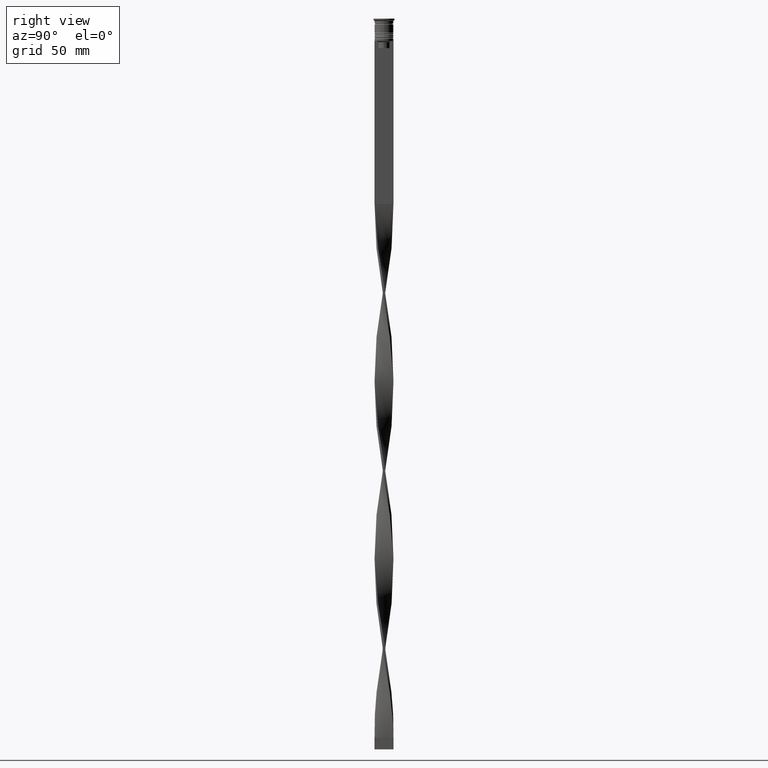
[diagram: clean part render]
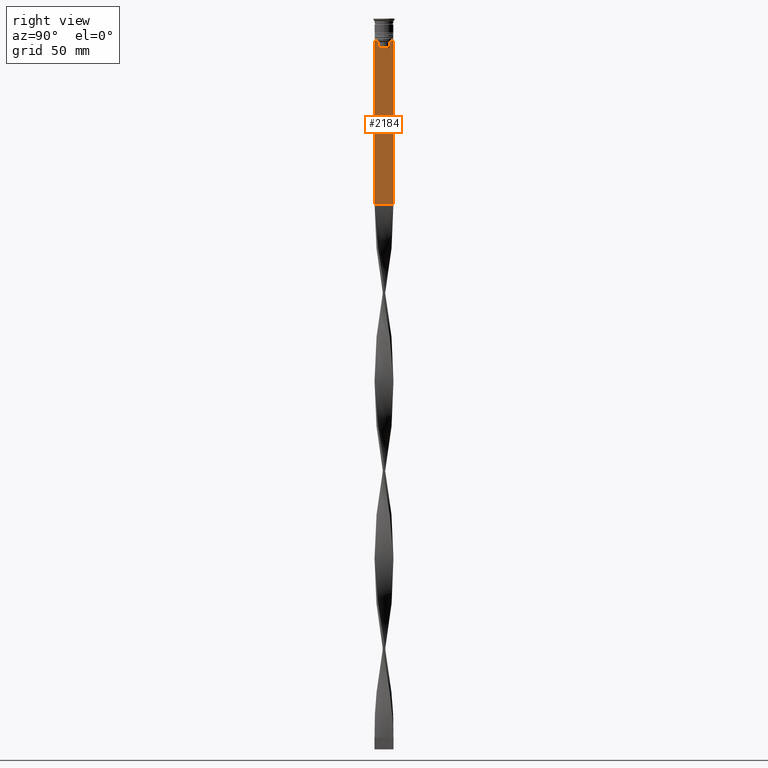
[diagram: same view with one face highlighted and labeled with its STEP entity id]
A machine part, right view. The second image highlights one B-rep face of the part: STEP entity #2184.
In plain terms, the highlighted planar face has unit normal (-1, 0, 0).
Its self-contained STEP definition (entity closure, byte-faithful):
#27 = CARTESIAN_POINT ( 'NONE',  ( 0.5000000000000000000, 2.399999999999996803, -12.50000000000000000 ) ) ;
#65 = VECTOR ( 'NONE', #343, 1000.000000000000000 ) ;
#94 = LINE ( 'NONE', #3517, #1070 ) ;
#110 = EDGE_LOOP ( 'NONE', ( #2004, #2287, #1614, #224, #420, #378, #1894, #813, #1599, #3835, #1559, #2191 ) ) ;
#114 = CARTESIAN_POINT ( 'NONE',  ( 0.5000000000000000000, 2.347338918861097135, 0.000000000000000000 ) ) ;
#126 = EDGE_CURVE ( 'NONE', #2471, #1041, #1965, .T. ) ;
#137 = DIRECTION ( 'NONE',  ( 0.000000000000000000, 0.000000000000000000, 1.000000000000000000 ) ) ;
#142 = VECTOR ( 'NONE', #2927, 1000.000000000000000 ) ;
#224 = ORIENTED_EDGE ( 'NONE', *, *, #1455, .T. ) ;
#258 = VERTEX_POINT ( 'NONE', #2785 ) ;
#343 = DIRECTION ( 'NONE',  ( 0.000000000000000000, -1.000000000000000000, 0.000000000000000000 ) ) ;
#376 = DIRECTION ( 'NONE',  ( 0.000000000000000000, -1.000000000000000000, 0.000000000000000000 ) ) ;
#378 = ORIENTED_EDGE ( 'NONE', *, *, #1661, .T. ) ;
#420 = ORIENTED_EDGE ( 'NONE', *, *, #2011, .T. ) ;
#434 = CARTESIAN_POINT ( 'NONE',  ( 0.5000000000000000000, 4.000000000000000000, -78.50000000000000000 ) ) ;
#548 = LINE ( 'NONE', #3089, #1448 ) ;
#593 = DIRECTION ( 'NONE',  ( 0.000000000000000000, 0.000000000000000000, -1.000000000000000000 ) ) ;
#604 = DIRECTION ( 'NONE',  ( 0.000000000000000000, -1.000000000000000000, 0.000000000000000000 ) ) ;
#681 = DIRECTION ( 'NONE',  ( -1.000000000000000000, 0.000000000000000000, 0.000000000000000000 ) ) ;
#708 = CARTESIAN_POINT ( 'NONE',  ( 0.5000000000000000000, 2.347338918861097135, -10.00000000000000000 ) ) ;
#738 = CARTESIAN_POINT ( 'NONE',  ( 0.5000000000000000000, 2.687094542495898075, -9.666938847453439010 ) ) ;
#753 = PLANE ( 'NONE',  #3762 ) ;
#765 = B_SPLINE_CURVE_WITH_KNOTS ( 'NONE', 3,
 ( #3906, #1663, #3882, #1334 ),
 .UNSPECIFIED., .F., .F.,
 ( 4, 4 ),
 ( 0.01178336557230038467, 0.01249758354768160280 ),
 .UNSPECIFIED. ) ;
#813 = ORIENTED_EDGE ( 'NONE', *, *, #2531, .T. ) ;
#902 = EDGE_CURVE ( 'NONE', #2613, #2471, #3028, .T. ) ;
#1006 = DIRECTION ( 'NONE',  ( 0.000000000000000000, 1.000000000000000000, 0.000000000000000000 ) ) ;
#1032 = CARTESIAN_POINT ( 'NONE',  ( 0.5000000000000000000, 2.517407211010872281, -9.833663366238582171 ) ) ;
#1041 = VERTEX_POINT ( 'NONE', #3608 ) ;
#1070 = VECTOR ( 'NONE', #1006, 1000.000000000000000 ) ;
#1120 = VECTOR ( 'NONE', #1370, 1000.000000000000000 ) ;
#1188 = VECTOR ( 'NONE', #593, 1000.000000000000000 ) ;
#1255 = CARTESIAN_POINT ( 'NONE',  ( 0.5000000000000000000, 4.000000000000000000, -1.437742251701450202 ) ) ;
#1265 = LINE ( 'NONE', #3190, #3235 ) ;
#1334 = CARTESIAN_POINT ( 'NONE',  ( 0.5000000000000000000, -2.856571371417138572, -9.500000000000000000 ) ) ;
#1349 = LINE ( 'NONE', #2603, #2437 ) ;
#1355 = CARTESIAN_POINT ( 'NONE',  ( 0.5000000000000000000, -4.000000000000000000, -78.50000000000000000 ) ) ;
#1368 = CARTESIAN_POINT ( 'NONE',  ( 0.5000000000000000000, -4.000000000000000000, -1.437742251701450202 ) ) ;
#1370 = DIRECTION ( 'NONE',  ( 0.000000000000000000, 0.000000000000000000, -1.000000000000000000 ) ) ;
#1448 = VECTOR ( 'NONE', #604, 1000.000000000000000 ) ;
#1455 = EDGE_CURVE ( 'NONE', #1041, #2814, #2468, .T. ) ;
#1559 = ORIENTED_EDGE ( 'NONE', *, *, #3808, .F. ) ;
#1567 = CARTESIAN_POINT ( 'NONE',  ( 0.5000000000000000000, -2.347338918861097135, 0.000000000000000000 ) ) ;
#1574 = EDGE_CURVE ( 'NONE', #2880, #2870, #1265, .T. ) ;
#1599 = ORIENTED_EDGE ( 'NONE', *, *, #1574, .T. ) ;
#1602 = CARTESIAN_POINT ( 'NONE',  ( 0.5000000000000000000, -4.000000000000000000, -9.500000000000000000 ) ) ;
#1614 = ORIENTED_EDGE ( 'NONE', *, *, #126, .T. ) ;
#1624 = EDGE_CURVE ( 'NONE', #258, #2673, #2015, .T. ) ;
#1656 = FACE_OUTER_BOUND ( 'NONE', #110, .T. ) ;
#1661 = EDGE_CURVE ( 'NONE', #3701, #2533, #765, .T. ) ;
#1663 = CARTESIAN_POINT ( 'NONE',  ( 0.5000000000000000000, -2.517408374291112416, -9.833662228483172285 ) ) ;
#1709 = CARTESIAN_POINT ( 'NONE',  ( 0.5000000000000000000, -4.000000000000000000, -9.500000000000000000 ) ) ;
#1845 = DIRECTION ( 'NONE',  ( 0.000000000000000000, 0.000000000000000000, -1.000000000000000000 ) ) ;
#1846 = VECTOR ( 'NONE', #2886, 1000.000000000000000 ) ;
#1894 = ORIENTED_EDGE ( 'NONE', *, *, #3985, .T. ) ;
#1965 = LINE ( 'NONE', #114, #1120 ) ;
#2004 = ORIENTED_EDGE ( 'NONE', *, *, #2210, .T. ) ;
#2011 = EDGE_CURVE ( 'NONE', #2814, #3701, #3162, .T. ) ;
#2015 = LINE ( 'NONE', #3863, #142 ) ;
#2184 = ADVANCED_FACE ( 'NONE', ( #1656 ), #753, .F. ) ;
#2191 = ORIENTED_EDGE ( 'NONE', *, *, #1624, .T. ) ;
#2210 = EDGE_CURVE ( 'NONE', #2673, #2613, #1349, .T. ) ;
#2213 = CARTESIAN_POINT ( 'NONE',  ( 0.5000000000000000000, -3.867815921162741422, -9.500000000000000000 ) ) ;
#2220 = CARTESIAN_POINT ( 'NONE',  ( 0.5000000000000000000, 2.347338918861097135, -10.00000000000000000 ) ) ;
#2257 = CARTESIAN_POINT ( 'NONE',  ( 0.5000000000000000000, 2.856571371417138572, -9.500000000000000000 ) ) ;
#2287 = ORIENTED_EDGE ( 'NONE', *, *, #902, .T. ) ;
#2342 = EDGE_CURVE ( 'NONE', #2870, #2930, #94, .T. ) ;
#2437 = VECTOR ( 'NONE', #376, 1000.000000000000000 ) ;
#2468 = LINE ( 'NONE', #27, #65 ) ;
#2471 = VERTEX_POINT ( 'NONE', #2220 ) ;
#2531 = EDGE_CURVE ( 'NONE', #3431, #2880, #2551, .T. ) ;
#2533 = VERTEX_POINT ( 'NONE', #3153 ) ;
#2551 = LINE ( 'NONE', #1602, #1846 ) ;
#2603 = CARTESIAN_POINT ( 'NONE',  ( 0.5000000000000000000, -4.000000000000000000, -9.500000000000000000 ) ) ;
#2613 = VERTEX_POINT ( 'NONE', #3222 ) ;
#2673 = VERTEX_POINT ( 'NONE', #3578 ) ;
#2785 = CARTESIAN_POINT ( 'NONE',  ( 0.5000000000000000000, 4.000000000000000000, -9.500000000000000000 ) ) ;
#2814 = VERTEX_POINT ( 'NONE', #3846 ) ;
#2851 = CARTESIAN_POINT ( 'NONE',  ( 0.5000000000000000000, -2.347338918861097135, -10.00000000000000000 ) ) ;
#2870 = VERTEX_POINT ( 'NONE', #1355 ) ;
#2880 = VERTEX_POINT ( 'NONE', #1709 ) ;
#2886 = DIRECTION ( 'NONE',  ( 0.000000000000000000, -1.000000000000000000, 0.000000000000000000 ) ) ;
#2909 = VECTOR ( 'NONE', #3139, 1000.000000000000000 ) ;
#2927 = DIRECTION ( 'NONE',  ( 0.000000000000000000, -1.000000000000000000, 0.000000000000000000 ) ) ;
#2930 = VERTEX_POINT ( 'NONE', #434 ) ;
#3028 = B_SPLINE_CURVE_WITH_KNOTS ( 'NONE', 3,
 ( #2257, #738, #1032, #708 ),
 .UNSPECIFIED., .F., .F.,
 ( 4, 4 ),
 ( 0.004956812174141191595, 0.005670477137898149653 ),
 .UNSPECIFIED. ) ;
#3089 = CARTESIAN_POINT ( 'NONE',  ( 0.5000000000000000000, -4.000000000000000000, -9.500000000000000000 ) ) ;
#3139 = DIRECTION ( 'NONE',  ( -0.000000000000000000, -0.000000000000000000, 1.000000000000000000 ) ) ;
#3153 = CARTESIAN_POINT ( 'NONE',  ( 0.5000000000000000000, -2.856571371417138572, -9.500000000000000000 ) ) ;
#3162 = LINE ( 'NONE', #1567, #2909 ) ;
#3190 = CARTESIAN_POINT ( 'NONE',  ( 0.5000000000000000000, -4.000000000000000000, -1.437742251701450202 ) ) ;
#3222 = CARTESIAN_POINT ( 'NONE',  ( 0.5000000000000000000, 2.856571371417138572, -9.500000000000000000 ) ) ;
#3235 = VECTOR ( 'NONE', #1845, 1000.000000000000000 ) ;
#3426 = LINE ( 'NONE', #1255, #1188 ) ;
#3431 = VERTEX_POINT ( 'NONE', #2213 ) ;
#3517 = CARTESIAN_POINT ( 'NONE',  ( 0.5000000000000000000, -4.000000000000000000, -78.50000000000000000 ) ) ;
#3578 = CARTESIAN_POINT ( 'NONE',  ( 0.5000000000000000000, 3.867815921162741422, -9.500000000000000000 ) ) ;
#3608 = CARTESIAN_POINT ( 'NONE',  ( 0.5000000000000000000, 2.347338918861097135, -12.50000000000000000 ) ) ;
#3701 = VERTEX_POINT ( 'NONE', #2851 ) ;
#3762 = AXIS2_PLACEMENT_3D ( 'NONE', #1368, #681, #137 ) ;
#3808 = EDGE_CURVE ( 'NONE', #258, #2930, #3426, .T. ) ;
#3835 = ORIENTED_EDGE ( 'NONE', *, *, #2342, .T. ) ;
#3846 = CARTESIAN_POINT ( 'NONE',  ( 0.5000000000000000000, -2.347338918861097135, -12.50000000000000000 ) ) ;
#3863 = CARTESIAN_POINT ( 'NONE',  ( 0.5000000000000000000, -4.000000000000000000, -9.500000000000000000 ) ) ;
#3882 = CARTESIAN_POINT ( 'NONE',  ( 0.5000000000000000000, -2.687095498514037839, -9.666937905752043037 ) ) ;
#3906 = CARTESIAN_POINT ( 'NONE',  ( 0.5000000000000000000, -2.347338918861097135, -10.00000000000000000 ) ) ;
#3985 = EDGE_CURVE ( 'NONE', #2533, #3431, #548, .T. ) ;